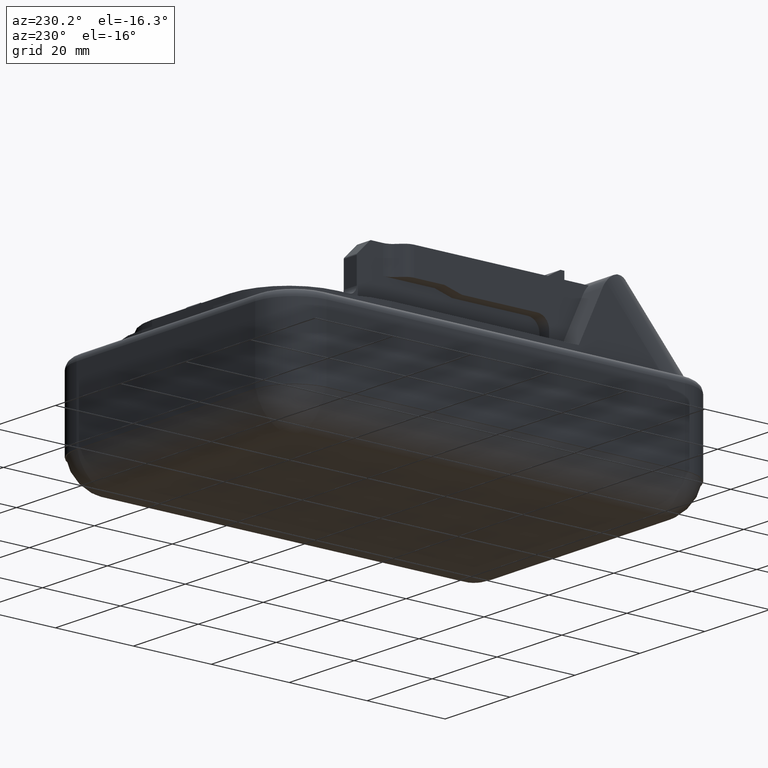
[diagram: clean part render]
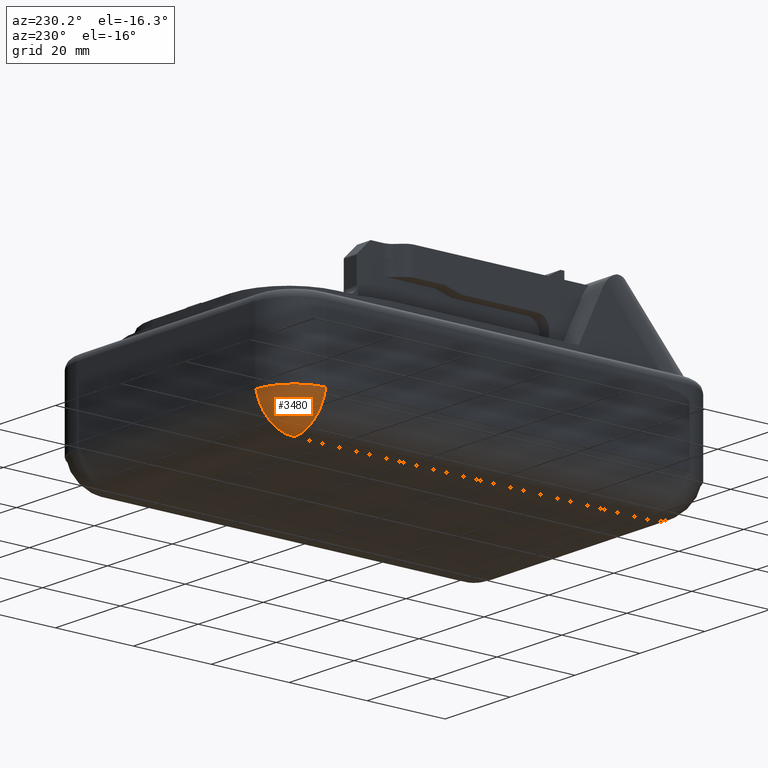
[diagram: same view with one face highlighted and labeled with its STEP entity id]
A machine part, auxiliary view. The second image highlights one B-rep face of the part: STEP entity #3480.
In plain terms, the highlighted spherical surface has radius 10 mm.
Its self-contained STEP definition (entity closure, byte-faithful):
#1037=FACE_OUTER_BOUND('',#1229,.T.);
#1229=EDGE_LOOP('',(#2431,#2432,#2433));
#1431=CIRCLE('',#3693,10.);
#1433=CIRCLE('',#3696,9.79795897113271);
#1434=CIRCLE('',#3697,10.);
#1545=VERTEX_POINT('',#5045);
#1547=VERTEX_POINT('',#5048);
#1548=VERTEX_POINT('',#5053);
#1896=EDGE_CURVE('',#1545,#1547,#1431,.T.);
#1899=EDGE_CURVE('',#1548,#1545,#1433,.T.);
#1900=EDGE_CURVE('',#1548,#1547,#1434,.T.);
#2431=ORIENTED_EDGE('',*,*,#1899,.F.);
#2432=ORIENTED_EDGE('',*,*,#1900,.T.);
#2433=ORIENTED_EDGE('',*,*,#1896,.F.);
#3473=SPHERICAL_SURFACE('',#3695,10.);
#3480=ADVANCED_FACE('',(#1037),#3473,.T.);
#3693=AXIS2_PLACEMENT_3D('',#5049,#4023,#4024);
#3695=AXIS2_PLACEMENT_3D('',#5052,#4028,#4029);
#3696=AXIS2_PLACEMENT_3D('',#5054,#4030,#4031);
#3697=AXIS2_PLACEMENT_3D('',#5055,#4032,#4033);
#4023=DIRECTION('center_axis',(0.,-1.,0.));
#4024=DIRECTION('ref_axis',(0.,0.,1.));
#4028=DIRECTION('center_axis',(0.,0.,-1.));
#4029=DIRECTION('ref_axis',(-0.965925826288944,-0.258819045102985,0.));
#4030=DIRECTION('center_axis',(0.,0.,1.));
#4031=DIRECTION('ref_axis',(0.,-1.,0.));
#4032=DIRECTION('center_axis',(-1.,-4.4408920985E-17,0.));
#4033=DIRECTION('ref_axis',(-4.4408920985E-17,1.,0.));
#5045=CARTESIAN_POINT('',(-37.2979589711327,205.,8.));
#5048=CARTESIAN_POINT('',(-27.5,205.,0.));
#5049=CARTESIAN_POINT('Origin',(-27.5,205.,10.));
#5052=CARTESIAN_POINT('Origin',(-27.5,205.,10.));
#5053=CARTESIAN_POINT('',(-27.5,214.797958971133,8.));
#5054=CARTESIAN_POINT('Origin',(-27.5,205.,8.));
#5055=CARTESIAN_POINT('Origin',(-27.5,205.,10.));